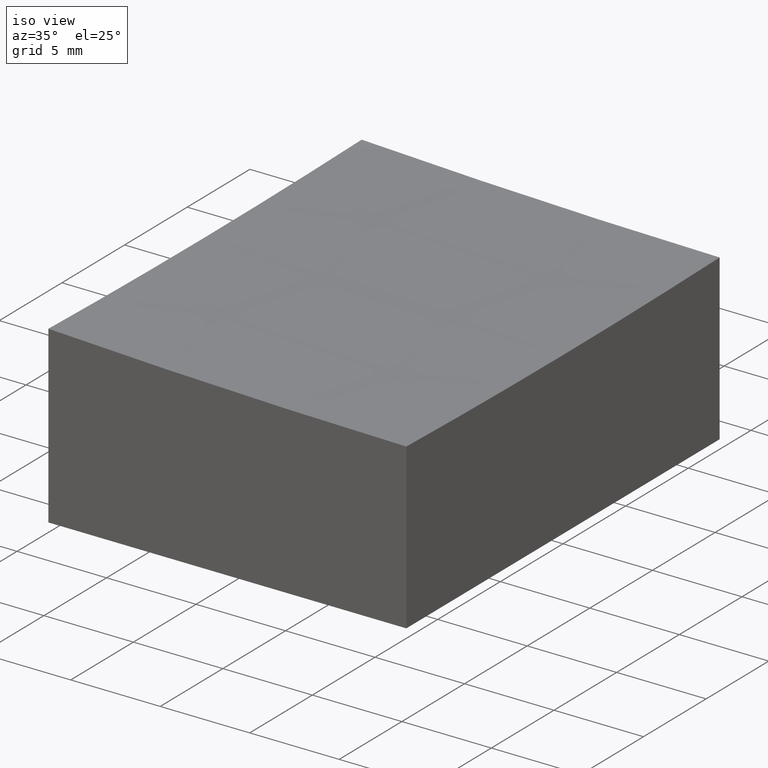
[diagram: clean part render]
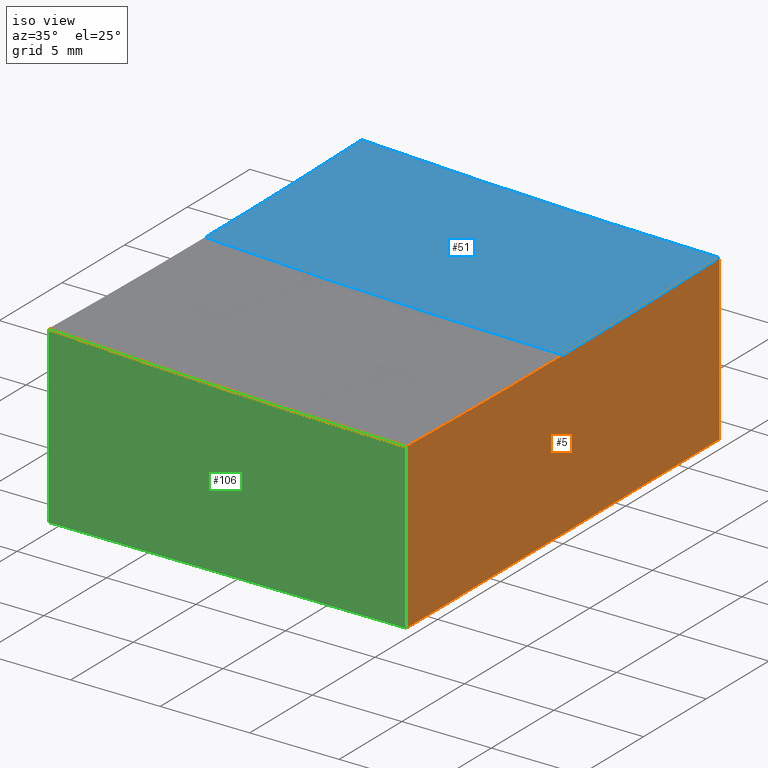
[diagram: same view with three faces highlighted in distinct colors, each labeled with its STEP entity id]
A machine part, iso view with three faces highlighted in distinct colors.
Their STEP definitions:

[orange] entity #5 — the highlighted planar face has unit normal (-1, 0, 0).
#5 = ADVANCED_FACE ( 'NONE', ( #215 ), #190, .F. ) ;
#6 = DIRECTION ( 'NONE',  ( 0.000000000000000000, 0.000000000000000000, 1.000000000000000000 ) ) ;
#11 = DIRECTION ( 'NONE',  ( 0.000000000000000000, 0.000000000000000000, 1.000000000000000000 ) ) ;
#18 = EDGE_LOOP ( 'NONE', ( #113, #21, #187, #148, #273 ) ) ;
#20 = VECTOR ( 'NONE', #200, 1000.000000000000000 ) ;
#21 = ORIENTED_EDGE ( 'NONE', *, *, #73, .T. ) ;
#23 = CARTESIAN_POINT ( 'NONE',  ( 10.00000000000000178, -12.50000000000000000, -0.8187171365233725240 ) ) ;
#25 = DIRECTION ( 'NONE',  ( -1.000000000000000000, 0.000000000000000000, 0.000000000000000000 ) ) ;
#36 = CARTESIAN_POINT ( 'NONE',  ( 10.00000000000000178, -12.50000000000000000, 10.00000000000000000 ) ) ;
#39 = AXIS2_PLACEMENT_3D ( 'NONE', #116, #25, #6 ) ;
#40 = EDGE_CURVE ( 'NONE', #129, #183, #65, .T. ) ;
#49 = VECTOR ( 'NONE', #266, 1000.000000000000000 ) ;
#50 = CARTESIAN_POINT ( 'NONE',  ( 10.00000000000000178, 12.50000000000000000, 10.00000000000000000 ) ) ;
#52 = CARTESIAN_POINT ( 'NONE',  ( 10.00000000000000178, 12.50000000000000000, -10.00000000000000000 ) ) ;
#55 = CARTESIAN_POINT ( 'NONE',  ( 10.00000000000000178, -12.50000000000000000, -10.00000000000000000 ) ) ;
#61 = EDGE_CURVE ( 'NONE', #212, #183, #246, .T. ) ;
#65 = LINE ( 'NONE', #50, #142 ) ;
#73 = EDGE_CURVE ( 'NONE', #129, #185, #265, .T. ) ;
#78 = DIRECTION ( 'NONE',  ( -1.000000000000000000, 0.000000000000000000, 0.000000000000000000 ) ) ;
#79 = AXIS2_PLACEMENT_3D ( 'NONE', #36, #206, #127 ) ;
#80 = LINE ( 'NONE', #140, #20 ) ;
#98 = CARTESIAN_POINT ( 'NONE',  ( 10.00000000000000178, -12.50000000000000000, -10.00000000000000000 ) ) ;
#113 = ORIENTED_EDGE ( 'NONE', *, *, #40, .F. ) ;
#116 = CARTESIAN_POINT ( 'NONE',  ( 10.00000000000000178, 0.000000000000000000, 499.0000000000000000 ) ) ;
#127 = DIRECTION ( 'NONE',  ( 0.000000000000000000, 0.000000000000000000, 1.000000000000000000 ) ) ;
#129 = VERTEX_POINT ( 'NONE', #180 ) ;
#140 = CARTESIAN_POINT ( 'NONE',  ( 10.00000000000000178, -12.50000000000000000, 10.00000000000000000 ) ) ;
#142 = VECTOR ( 'NONE', #163, 1000.000000000000000 ) ;
#148 = ORIENTED_EDGE ( 'NONE', *, *, #154, .T. ) ;
#154 = EDGE_CURVE ( 'NONE', #236, #212, #80, .T. ) ;
#163 = DIRECTION ( 'NONE',  ( -0.000000000000000000, -0.000000000000000000, -1.000000000000000000 ) ) ;
#167 = CIRCLE ( 'NONE', #39, 499.9749993749687178 ) ;
#175 = AXIS2_PLACEMENT_3D ( 'NONE', #245, #78, #11 ) ;
#180 = CARTESIAN_POINT ( 'NONE',  ( 10.00000000000000178, 12.50000000000000000, -0.8187171365233725240 ) ) ;
#183 = VERTEX_POINT ( 'NONE', #52 ) ;
#185 = VERTEX_POINT ( 'NONE', #227 ) ;
#187 = ORIENTED_EDGE ( 'NONE', *, *, #262, .T. ) ;
#190 = PLANE ( 'NONE',  #79 ) ;
#200 = DIRECTION ( 'NONE',  ( -0.000000000000000000, -0.000000000000000000, -1.000000000000000000 ) ) ;
#206 = DIRECTION ( 'NONE',  ( -1.000000000000000000, 0.000000000000000000, 0.000000000000000000 ) ) ;
#212 = VERTEX_POINT ( 'NONE', #98 ) ;
#215 = FACE_OUTER_BOUND ( 'NONE', #18, .T. ) ;
#227 = CARTESIAN_POINT ( 'NONE',  ( 10.00000000000000178, 0.000000000000000000, -0.9749993749686991507 ) ) ;
#236 = VERTEX_POINT ( 'NONE', #23 ) ;
#245 = CARTESIAN_POINT ( 'NONE',  ( 10.00000000000000178, 0.000000000000000000, 499.0000000000000000 ) ) ;
#246 = LINE ( 'NONE', #55, #49 ) ;
#262 = EDGE_CURVE ( 'NONE', #185, #236, #167, .T. ) ;
#265 = CIRCLE ( 'NONE', #175, 499.9749993749687178 ) ;
#266 = DIRECTION ( 'NONE',  ( 0.000000000000000000, 1.000000000000000000, 0.000000000000000000 ) ) ;
#273 = ORIENTED_EDGE ( 'NONE', *, *, #61, .T. ) ;

[blue] entity #51 — the highlighted spherical surface has radius 500 mm.
#11 = DIRECTION ( 'NONE',  ( 0.000000000000000000, 0.000000000000000000, 1.000000000000000000 ) ) ;
#14 = DIRECTION ( 'NONE',  ( 0.000000000000000000, 0.000000000000000000, -1.000000000000000000 ) ) ;
#15 = CIRCLE ( 'NONE', #145, 499.8437255783051114 ) ;
#29 = DIRECTION ( 'NONE',  ( 1.000000000000000000, 0.000000000000000000, 0.000000000000000000 ) ) ;
#30 = CARTESIAN_POINT ( 'NONE',  ( 15.00000000000006395, 0.000000000000000000, 499.0000000000000000 ) ) ;
#51 = ADVANCED_FACE ( 'NONE', ( #122 ), #223, .F. ) ;
#73 = EDGE_CURVE ( 'NONE', #129, #185, #265, .T. ) ;
#78 = DIRECTION ( 'NONE',  ( -1.000000000000000000, 0.000000000000000000, 0.000000000000000000 ) ) ;
#87 = AXIS2_PLACEMENT_3D ( 'NONE', #226, #29, #14 ) ;
#93 = EDGE_CURVE ( 'NONE', #107, #165, #186, .T. ) ;
#96 = EDGE_CURVE ( 'NONE', #107, #185, #225, .T. ) ;
#107 = VERTEX_POINT ( 'NONE', #162 ) ;
#119 = DIRECTION ( 'NONE',  ( 0.000000000000000000, -1.000000000000000000, 0.000000000000000000 ) ) ;
#122 = FACE_OUTER_BOUND ( 'NONE', #254, .T. ) ;
#123 = CARTESIAN_POINT ( 'NONE',  ( 15.00000000000006395, 0.000000000000000000, 499.0000000000000000 ) ) ;
#129 = VERTEX_POINT ( 'NONE', #180 ) ;
#136 = DIRECTION ( 'NONE',  ( 0.000000000000000000, 0.000000000000000000, -1.000000000000000000 ) ) ;
#139 = DIRECTION ( 'NONE',  ( -1.000000000000000000, 0.000000000000000000, 1.110223024625156787E-16 ) ) ;
#145 = AXIS2_PLACEMENT_3D ( 'NONE', #240, #259, #239 ) ;
#162 = CARTESIAN_POINT ( 'NONE',  ( -10.00000000000000000, 0.000000000000000000, -0.3746088859544194349 ) ) ;
#165 = VERTEX_POINT ( 'NONE', #244 ) ;
#169 = ORIENTED_EDGE ( 'NONE', *, *, #73, .F. ) ;
#172 = AXIS2_PLACEMENT_3D ( 'NONE', #30, #229, #139 ) ;
#175 = AXIS2_PLACEMENT_3D ( 'NONE', #245, #78, #11 ) ;
#180 = CARTESIAN_POINT ( 'NONE',  ( 10.00000000000000178, 12.50000000000000000, -0.8187171365233725240 ) ) ;
#185 = VERTEX_POINT ( 'NONE', #227 ) ;
#186 = CIRCLE ( 'NONE', #87, 499.3746088859544443 ) ;
#210 = ORIENTED_EDGE ( 'NONE', *, *, #224, .F. ) ;
#223 = SPHERICAL_SURFACE ( 'NONE', #172, 499.9999999999999432 ) ;
#224 = EDGE_CURVE ( 'NONE', #165, #129, #15, .T. ) ;
#225 = CIRCLE ( 'NONE', #243, 499.9999999999999432 ) ;
#226 = CARTESIAN_POINT ( 'NONE',  ( -10.00000000000000000, 0.000000000000000000, 499.0000000000000000 ) ) ;
#227 = CARTESIAN_POINT ( 'NONE',  ( 10.00000000000000178, 0.000000000000000000, -0.9749993749686991507 ) ) ;
#229 = DIRECTION ( 'NONE',  ( 0.000000000000000000, 1.000000000000000000, -0.000000000000000000 ) ) ;
#239 = DIRECTION ( 'NONE',  ( 1.000000000000000000, 1.735265831305355409E-16, 0.000000000000000000 ) ) ;
#240 = CARTESIAN_POINT ( 'NONE',  ( 15.00000000000006217, 12.50000000000000178, 499.0000000000000000 ) ) ;
#243 = AXIS2_PLACEMENT_3D ( 'NONE', #123, #119, #136 ) ;
#244 = CARTESIAN_POINT ( 'NONE',  ( -9.999999999999998224, 12.49999999999999645, -0.2181386928964412775 ) ) ;
#245 = CARTESIAN_POINT ( 'NONE',  ( 10.00000000000000178, 0.000000000000000000, 499.0000000000000000 ) ) ;
#252 = ORIENTED_EDGE ( 'NONE', *, *, #93, .F. ) ;
#254 = EDGE_LOOP ( 'NONE', ( #252, #272, #169, #210 ) ) ;
#259 = DIRECTION ( 'NONE',  ( 1.734723475976807094E-16, -1.000000000000000000, 0.000000000000000000 ) ) ;
#265 = CIRCLE ( 'NONE', #175, 499.9749993749687178 ) ;
#272 = ORIENTED_EDGE ( 'NONE', *, *, #96, .T. ) ;

[green] entity #106 — the highlighted planar face has unit normal (-0, 1, 0).
#3 = LINE ( 'NONE', #44, #67 ) ;
#10 = CARTESIAN_POINT ( 'NONE',  ( -9.999999999999998224, -12.50000000000000355, -0.2181386928964412775 ) ) ;
#12 = EDGE_CURVE ( 'NONE', #236, #62, #24, .T. ) ;
#13 = CARTESIAN_POINT ( 'NONE',  ( 10.00000000000000178, -12.50000000000000000, -10.00000000000000000 ) ) ;
#16 = DIRECTION ( 'NONE',  ( -1.734723475976807094E-16, 1.000000000000000000, 0.000000000000000000 ) ) ;
#17 = EDGE_LOOP ( 'NONE', ( #276, #235, #233, #170 ) ) ;
#20 = VECTOR ( 'NONE', #200, 1000.000000000000000 ) ;
#23 = CARTESIAN_POINT ( 'NONE',  ( 10.00000000000000178, -12.50000000000000000, -0.8187171365233725240 ) ) ;
#24 = CIRCLE ( 'NONE', #27, 499.8437255783051114 ) ;
#27 = AXIS2_PLACEMENT_3D ( 'NONE', #111, #16, #90 ) ;
#33 = AXIS2_PLACEMENT_3D ( 'NONE', #177, #263, #120 ) ;
#44 = CARTESIAN_POINT ( 'NONE',  ( -9.999999999999998224, -12.50000000000000355, 10.00000000000000000 ) ) ;
#54 = LINE ( 'NONE', #13, #257 ) ;
#62 = VERTEX_POINT ( 'NONE', #10 ) ;
#67 = VECTOR ( 'NONE', #92, 1000.000000000000000 ) ;
#74 = PLANE ( 'NONE',  #33 ) ;
#80 = LINE ( 'NONE', #140, #20 ) ;
#90 = DIRECTION ( 'NONE',  ( -1.000000000000000000, -1.735265831305355409E-16, 0.000000000000000000 ) ) ;
#92 = DIRECTION ( 'NONE',  ( -0.000000000000000000, -0.000000000000000000, -1.000000000000000000 ) ) ;
#98 = CARTESIAN_POINT ( 'NONE',  ( 10.00000000000000178, -12.50000000000000000, -10.00000000000000000 ) ) ;
#106 = ADVANCED_FACE ( 'NONE', ( #198 ), #74, .F. ) ;
#111 = CARTESIAN_POINT ( 'NONE',  ( 15.00000000000006573, -12.49999999999999822, 499.0000000000000000 ) ) ;
#115 = EDGE_CURVE ( 'NONE', #126, #212, #54, .T. ) ;
#120 = DIRECTION ( 'NONE',  ( -1.000000000000000000, -1.734723475976807094E-16, 0.000000000000000000 ) ) ;
#126 = VERTEX_POINT ( 'NONE', #242 ) ;
#140 = CARTESIAN_POINT ( 'NONE',  ( 10.00000000000000178, -12.50000000000000000, 10.00000000000000000 ) ) ;
#154 = EDGE_CURVE ( 'NONE', #236, #212, #80, .T. ) ;
#159 = DIRECTION ( 'NONE',  ( 1.000000000000000000, 1.734723475976807094E-16, -0.000000000000000000 ) ) ;
#170 = ORIENTED_EDGE ( 'NONE', *, *, #115, .T. ) ;
#177 = CARTESIAN_POINT ( 'NONE',  ( 10.00000000000000178, -12.50000000000000000, 10.00000000000000000 ) ) ;
#198 = FACE_OUTER_BOUND ( 'NONE', #17, .T. ) ;
#200 = DIRECTION ( 'NONE',  ( -0.000000000000000000, -0.000000000000000000, -1.000000000000000000 ) ) ;
#212 = VERTEX_POINT ( 'NONE', #98 ) ;
#233 = ORIENTED_EDGE ( 'NONE', *, *, #258, .T. ) ;
#235 = ORIENTED_EDGE ( 'NONE', *, *, #12, .T. ) ;
#236 = VERTEX_POINT ( 'NONE', #23 ) ;
#242 = CARTESIAN_POINT ( 'NONE',  ( -9.999999999999998224, -12.50000000000000355, -10.00000000000000000 ) ) ;
#257 = VECTOR ( 'NONE', #159, 1000.000000000000000 ) ;
#258 = EDGE_CURVE ( 'NONE', #62, #126, #3, .T. ) ;
#263 = DIRECTION ( 'NONE',  ( -1.734723475976807094E-16, 1.000000000000000000, 0.000000000000000000 ) ) ;
#276 = ORIENTED_EDGE ( 'NONE', *, *, #154, .F. ) ;